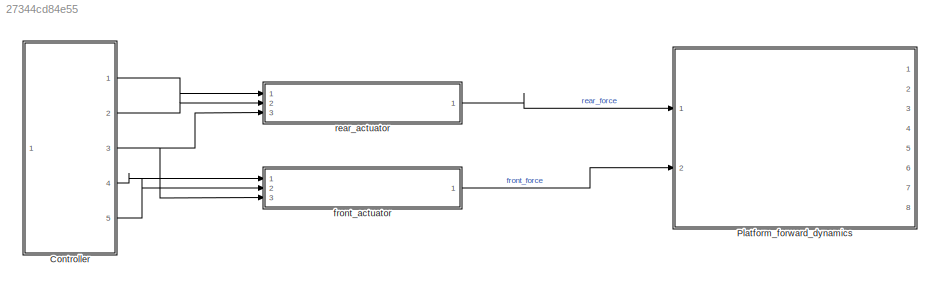
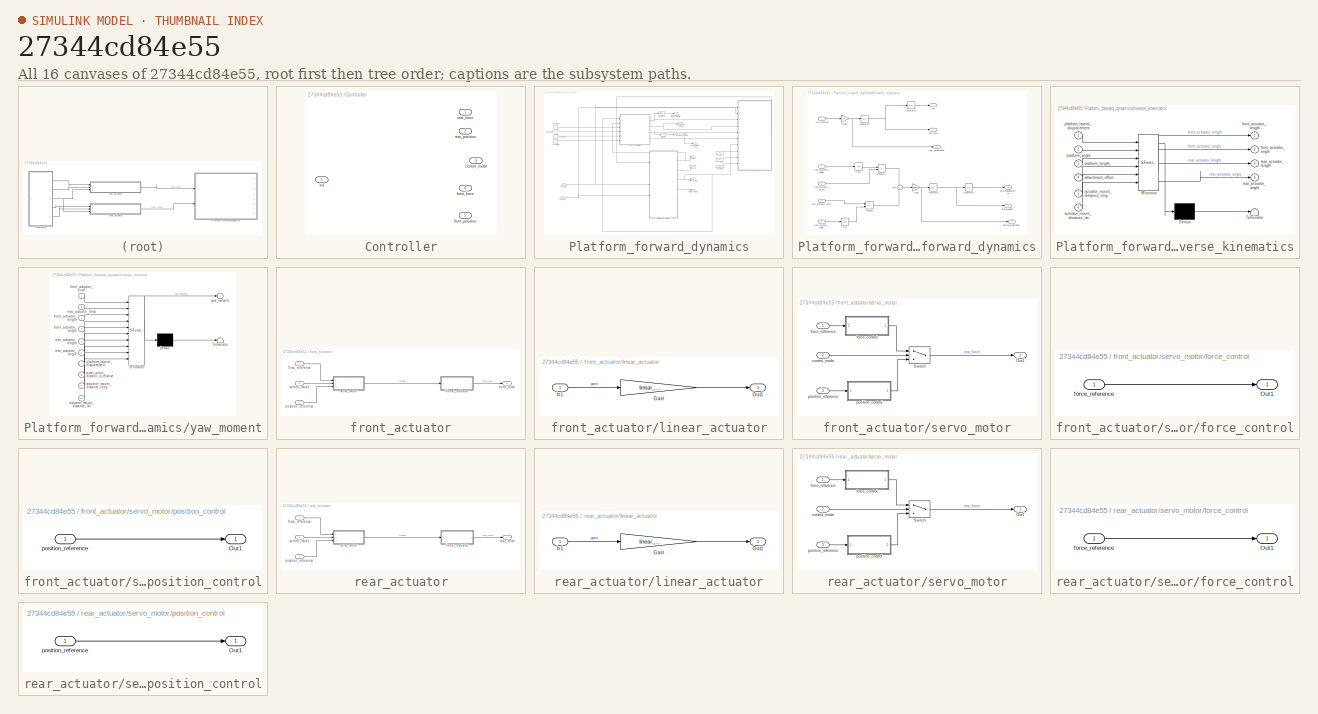
[diagram: thumbnail index - all 16 canvases of the model, root first then tree order]
MODEL slx_27344cd84e55
KIND model
CONFIG AbsTol = auto
CONFIG EnableMultiTasking = off
CONFIG FixedStep = dof2_sim.dt
CONFIG MaxStep = auto
CONFIG MinStep = auto
CONFIG RelTol = 1e-3
CONFIG SampleTimeConstraint = Unconstrained
CONFIG SolverName = FixedStepAuto
CONFIG StartTime = 0.0
CONFIG StopTime = 10.0
BLOCK [SubSystem] Controller
  Ports = [1, 5]
  RequestExecContextInheritance = off
BLOCK [Inport] Controller/In1
BLOCK [Outport] Controller/control_mode
  Port = 3
BLOCK [Outport] Controller/front_force
  Port = 4
BLOCK [Outport] Controller/front_position
  Port = 5
BLOCK [Outport] Controller/rear_force
BLOCK [Outport] Controller/rear_position
  Port = 2
BLOCK [SubSystem] Platform_forward_dynamics
  Ports = [2, 8]
  RequestExecContextInheritance = off
BLOCK [Constant] Platform_forward_dynamics/Constant
  Value = 0.5
BLOCK [Constant] Platform_forward_dynamics/Constant1
  Value = 0.5
BLOCK [Constant] Platform_forward_dynamics/Constant2
  Value = 0.5
BLOCK [Constant] Platform_forward_dynamics/Constant3
BLOCK [Constant] Platform_forward_dynamics/Constant4
BLOCK [Constant] Platform_forward_dynamics/Constant5
BLOCK [Constant] Platform_forward_dynamics/Constant6
BLOCK [Derivative] Platform_forward_dynamics/Derivative
BLOCK [Derivative] Platform_forward_dynamics/Derivative1
BLOCK [SubSystem] Platform_forward_dynamics/forward_dynamics
  Ports = [5, 6]
  RequestExecContextInheritance = off
BLOCK [Trigonometry] Platform_forward_dynamics/forward_dynamics/Cos
  Operator = cos
  Ports = [1, 1]
BLOCK [Trigonometry] Platform_forward_dynamics/forward_dynamics/Cos1
  Operator = cos
  Ports = [1, 1]
BLOCK [Gain] Platform_forward_dynamics/forward_dynamics/Gain
  Gain = 1/platform_mass
BLOCK [Gain] Platform_forward_dynamics/forward_dynamics/Gain1
  Gain = 1/Iz
BLOCK [Integrator] Platform_forward_dynamics/forward_dynamics/Integrator
  Ports = [1, 1]
BLOCK [Integrator] Platform_forward_dynamics/forward_dynamics/Integrator1
  Ports = [1, 1]
BLOCK [Integrator] Platform_forward_dynamics/forward_dynamics/Integrator2
  Ports = [1, 1]
BLOCK [Integrator] Platform_forward_dynamics/forward_dynamics/Integrator3
  Ports = [1, 1]
BLOCK [Product] Platform_forward_dynamics/forward_dynamics/Product
  Ports = [2, 1]
BLOCK [Product] Platform_forward_dynamics/forward_dynamics/Product1
  Ports = [2, 1]
BLOCK [Sum] Platform_forward_dynamics/forward_dynamics/Sum
  Inputs = +-
  Ports = [2, 1]
BLOCK [Inport] Platform_forward_dynamics/forward_dynamics/front_actuator_force
  Port = 3
BLOCK [Inport] Platform_forward_dynamics/forward_dynamics/front_acutator_angle
  Port = 2
BLOCK [Outport] Platform_forward_dynamics/forward_dynamics/lateral_acceleration
  Port = 5
BLOCK [Outport] Platform_forward_dynamics/forward_dynamics/lateral_displacement
  Port = 3
BLOCK [Outport] Platform_forward_dynamics/forward_dynamics/lateral_velocity
  Port = 4
BLOCK [Inport] Platform_forward_dynamics/forward_dynamics/rear_actuator_angle
  Port = 5
BLOCK [Inport] Platform_forward_dynamics/forward_dynamics/rear_actuator_force
  Port = 4
BLOCK [Outport] Platform_forward_dynamics/forward_dynamics/yaw
BLOCK [Outport] Platform_forward_dynamics/forward_dynamics/yaw_acceleration
  Port = 6
BLOCK [Inport] Platform_forward_dynamics/forward_dynamics/yaw_moment
BLOCK [Outport] Platform_forward_dynamics/forward_dynamics/yaw_rate
  Port = 2
BLOCK [Outport] Platform_forward_dynamics/front_actuator_angle
  Port = 3
BLOCK [Outport] Platform_forward_dynamics/front_actuator_linear_velocity
  Port = 7
BLOCK [Inport] Platform_forward_dynamics/front_force
  Port = 2
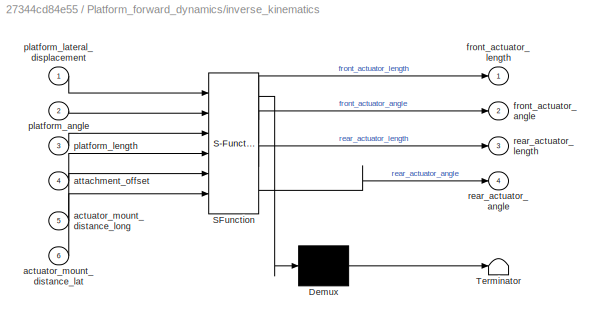
BLOCK [SubSystem] Platform_forward_dynamics/inverse_kinematics
  ErrorFcn = Stateflow.Translate.translate
  PermitHierarchicalResolution = ExplicitOnly
  Ports = [6, 4]
  RequestExecContextInheritance = off
  SFBlockType = MATLAB Function
  TreatAsAtomicUnit = on
BLOCK [Demux] Platform_forward_dynamics/inverse_kinematics/ Demux 
  Outputs = 1
  Ports = [1, 1]
BLOCK [S-Function] Platform_forward_dynamics/inverse_kinematics/ SFunction 
  EnableBusSupport = off
  FunctionName = sf_sfun
  PortCounts = [6 5]
  Ports = [6, 5]
  SFcnIsStateOwnerBlock = off
  SFunctionDeploymentMode = off
  Tag = Stateflow S-Function 1
BLOCK [Terminator] Platform_forward_dynamics/inverse_kinematics/ Terminator 
BLOCK [Inport] Platform_forward_dynamics/inverse_kinematics/actuator_mount_distance_lat
  Port = 6
BLOCK [Inport] Platform_forward_dynamics/inverse_kinematics/actuator_mount_distance_long
  Port = 5
BLOCK [Inport] Platform_forward_dynamics/inverse_kinematics/attachment_offset
  Port = 4
BLOCK [Outport] Platform_forward_dynamics/inverse_kinematics/front_actuator_angle
  Port = 2
BLOCK [Outport] Platform_forward_dynamics/inverse_kinematics/front_actuator_length
BLOCK [Inport] Platform_forward_dynamics/inverse_kinematics/platform_angle
  Port = 2
BLOCK [Inport] Platform_forward_dynamics/inverse_kinematics/platform_lateral_displacement
BLOCK [Inport] Platform_forward_dynamics/inverse_kinematics/platform_length
  Port = 3
BLOCK [Outport] Platform_forward_dynamics/inverse_kinematics/rear_actuator_angle
  Port = 4
BLOCK [Outport] Platform_forward_dynamics/inverse_kinematics/rear_actuator_length
  Port = 3
BLOCK [Outport] Platform_forward_dynamics/lateral_position
  Port = 2
BLOCK [Outport] Platform_forward_dynamics/lateral_velocity
  Port = 6
BLOCK [Outport] Platform_forward_dynamics/rear_actuator_angle
  Port = 4
BLOCK [Outport] Platform_forward_dynamics/rear_actuator_linear_velocity
  Port = 8
BLOCK [Inport] Platform_forward_dynamics/rear_force
BLOCK [Outport] Platform_forward_dynamics/theta
BLOCK [Outport] Platform_forward_dynamics/theta_dot
  Port = 5
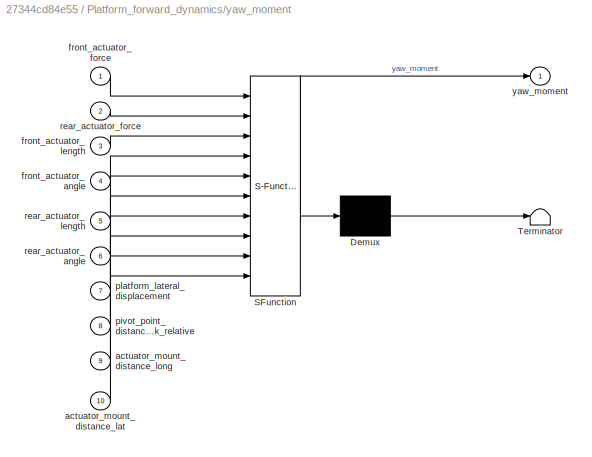
BLOCK [SubSystem] Platform_forward_dynamics/yaw_moment
  ErrorFcn = Stateflow.Translate.translate
  PermitHierarchicalResolution = ExplicitOnly
  Ports = [10, 1]
  RequestExecContextInheritance = off
  SFBlockType = MATLAB Function
  TreatAsAtomicUnit = on
BLOCK [Demux] Platform_forward_dynamics/yaw_moment/ Demux 
  Outputs = 1
  Ports = [1, 1]
BLOCK [S-Function] Platform_forward_dynamics/yaw_moment/ SFunction 
  EnableBusSupport = off
  FunctionName = sf_sfun
  PortCounts = [10 2]
  Ports = [10, 2]
  SFcnIsStateOwnerBlock = off
  SFunctionDeploymentMode = off
  Tag = Stateflow S-Function 2
BLOCK [Terminator] Platform_forward_dynamics/yaw_moment/ Terminator 
BLOCK [Inport] Platform_forward_dynamics/yaw_moment/actuator_mount_distance_lat
  Port = 10
BLOCK [Inport] Platform_forward_dynamics/yaw_moment/actuator_mount_distance_long
  Port = 9
BLOCK [Inport] Platform_forward_dynamics/yaw_moment/front_actuator_angle
  Port = 4
BLOCK [Inport] Platform_forward_dynamics/yaw_moment/front_actuator_force
BLOCK [Inport] Platform_forward_dynamics/yaw_moment/front_actuator_length
  Port = 3
BLOCK [Inport] Platform_forward_dynamics/yaw_moment/pivot_point_distance_from_back_relative
  Port = 8
BLOCK [Inport] Platform_forward_dynamics/yaw_moment/platform_lateral_displacement
  Port = 7
BLOCK [Inport] Platform_forward_dynamics/yaw_moment/rear_actuator_angle
  Port = 6
BLOCK [Inport] Platform_forward_dynamics/yaw_moment/rear_actuator_force
  Port = 2
BLOCK [Inport] Platform_forward_dynamics/yaw_moment/rear_actuator_length
  Port = 5
BLOCK [Outport] Platform_forward_dynamics/yaw_moment/yaw_moment
BLOCK [SubSystem] front_actuator
  Ports = [3, 1]
  RequestExecContextInheritance = off
BLOCK [Inport] front_actuator/control_mode
  Port = 3
BLOCK [Inport] front_actuator/force_reference
BLOCK [Outport] front_actuator/front_force
BLOCK [SubSystem] front_actuator/linear_actuator
  Ports = [1, 1]
  RequestExecContextInheritance = off
BLOCK [Gain] front_actuator/linear_actuator/Gain
  Gain = linear_actuator_force_torque_force_ratio
BLOCK [Inport] front_actuator/linear_actuator/In1
BLOCK [Outport] front_actuator/linear_actuator/Out1
BLOCK [Inport] front_actuator/position_reference
  Port = 2
BLOCK [SubSystem] front_actuator/servo_motor
  Ports = [3, 1]
  RequestExecContextInheritance = off
BLOCK [Outport] front_actuator/servo_motor/Out1
BLOCK [Switch] front_actuator/servo_motor/Switch
  Criteria = u2 > Threshold
  InputSameDT = off
  SaturateOnIntegerOverflow = off
BLOCK [Inport] front_actuator/servo_motor/control_mode
  Port = 2
BLOCK [SubSystem] front_actuator/servo_motor/force_control
  Ports = [1, 1]
  RequestExecContextInheritance = off
BLOCK [Outport] front_actuator/servo_motor/force_control/Out1
BLOCK [Inport] front_actuator/servo_motor/force_control/force_reference
BLOCK [Inport] front_actuator/servo_motor/force_reference
BLOCK [SubSystem] front_actuator/servo_motor/position_control
  Ports = [1, 1]
  RequestExecContextInheritance = off
BLOCK [Outport] front_actuator/servo_motor/position_control/Out1
BLOCK [Inport] front_actuator/servo_motor/position_control/position_reference
BLOCK [Inport] front_actuator/servo_motor/position_reference
  Port = 3
BLOCK [SubSystem] rear_actuator
  Ports = [3, 1]
  RequestExecContextInheritance = off
BLOCK [Inport] rear_actuator/control_mode
  Port = 3
BLOCK [Inport] rear_actuator/force_reference
BLOCK [SubSystem] rear_actuator/linear_actuator
  Ports = [1, 1]
  RequestExecContextInheritance = off
BLOCK [Gain] rear_actuator/linear_actuator/Gain
  Gain = linear_actuator_force_torque_force_ratio
BLOCK [Inport] rear_actuator/linear_actuator/In1
BLOCK [Outport] rear_actuator/linear_actuator/Out1
BLOCK [Inport] rear_actuator/position_reference
  Port = 2
BLOCK [Outport] rear_actuator/rear_force
BLOCK [SubSystem] rear_actuator/servo_motor
  Ports = [3, 1]
  RequestExecContextInheritance = off
BLOCK [Outport] rear_actuator/servo_motor/Out1
BLOCK [Switch] rear_actuator/servo_motor/Switch
  Criteria = u2 > Threshold
  InputSameDT = off
  SaturateOnIntegerOverflow = off
BLOCK [Inport] rear_actuator/servo_motor/control_mode
  Port = 2
BLOCK [SubSystem] rear_actuator/servo_motor/force_control
  Ports = [1, 1]
  RequestExecContextInheritance = off
BLOCK [Outport] rear_actuator/servo_motor/force_control/Out1
BLOCK [Inport] rear_actuator/servo_motor/force_control/force_reference
BLOCK [Inport] rear_actuator/servo_motor/force_reference
BLOCK [SubSystem] rear_actuator/servo_motor/position_control
  Ports = [1, 1]
  RequestExecContextInheritance = off
BLOCK [Outport] rear_actuator/servo_motor/position_control/Out1
BLOCK [Inport] rear_actuator/servo_motor/position_control/position_reference
BLOCK [Inport] rear_actuator/servo_motor/position_reference
  Port = 3
LINE Controller:1 -> rear_actuator:1
LINE Controller:2 -> rear_actuator:2
NET Controller:3 -> front_actuator:3, rear_actuator:3
LINE Controller:4 -> front_actuator:1
LINE Controller:5 -> front_actuator:2
LINE Platform_forward_dynamics/Constant1:1 -> Platform_forward_dynamics/yaw_moment:9
LINE Platform_forward_dynamics/Constant2:1 -> Platform_forward_dynamics/yaw_moment:10
LINE Platform_forward_dynamics/Constant3:1 -> Platform_forward_dynamics/inverse_kinematics:3
LINE Platform_forward_dynamics/Constant4:1 -> Platform_forward_dynamics/inverse_kinematics:4
LINE Platform_forward_dynamics/Constant5:1 -> Platform_forward_dynamics/inverse_kinematics:5
LINE Platform_forward_dynamics/Constant6:1 -> Platform_forward_dynamics/inverse_kinematics:6
LINE Platform_forward_dynamics/Constant:1 -> Platform_forward_dynamics/yaw_moment:8
LINE Platform_forward_dynamics/Derivative1:1 -> Platform_forward_dynamics/front_actuator_linear_velocity:1
LINE Platform_forward_dynamics/Derivative:1 -> Platform_forward_dynamics/rear_actuator_linear_velocity:1
LINE Platform_forward_dynamics/forward_dynamics/Cos1:1 -> Platform_forward_dynamics/forward_dynamics/Product1:1
LINE Platform_forward_dynamics/forward_dynamics/Cos:1 -> Platform_forward_dynamics/forward_dynamics/Product:2
NET Platform_forward_dynamics/forward_dynamics/Gain1:1 -> Platform_forward_dynamics/forward_dynamics/Integrator2:1, Platform_forward_dynamics/forward_dynamics/yaw_acceleration:1
NET Platform_forward_dynamics/forward_dynamics/Gain:1 -> Platform_forward_dynamics/forward_dynamics/Integrator:1, Platform_forward_dynamics/forward_dynamics/lateral_acceleration:1
LINE Platform_forward_dynamics/forward_dynamics/Integrator1:1 -> Platform_forward_dynamics/forward_dynamics/lateral_displacement:1
NET Platform_forward_dynamics/forward_dynamics/Integrator2:1 -> Platform_forward_dynamics/forward_dynamics/Integrator3:1, Platform_forward_dynamics/forward_dynamics/yaw_rate:1
LINE Platform_forward_dynamics/forward_dynamics/Integrator3:1 -> Platform_forward_dynamics/forward_dynamics/yaw:1
NET Platform_forward_dynamics/forward_dynamics/Integrator:1 -> Platform_forward_dynamics/forward_dynamics/Integrator1:1, Platform_forward_dynamics/forward_dynamics/lateral_velocity:1
LINE Platform_forward_dynamics/forward_dynamics/Product1:1 -> Platform_forward_dynamics/forward_dynamics/Sum:1
LINE Platform_forward_dynamics/forward_dynamics/Product:1 -> Platform_forward_dynamics/forward_dynamics/Sum:2
LINE Platform_forward_dynamics/forward_dynamics/Sum:1 -> Platform_forward_dynamics/forward_dynamics/Gain:1
LINE Platform_forward_dynamics/forward_dynamics/front_actuator_force:1 -> Platform_forward_dynamics/forward_dynamics/Product1:2
LINE Platform_forward_dynamics/forward_dynamics/front_acutator_angle:1 -> Platform_forward_dynamics/forward_dynamics/Cos1:1
LINE Platform_forward_dynamics/forward_dynamics/rear_actuator_angle:1 -> Platform_forward_dynamics/forward_dynamics/Cos:1
LINE Platform_forward_dynamics/forward_dynamics/rear_actuator_force:1 -> Platform_forward_dynamics/forward_dynamics/Product:1
LINE Platform_forward_dynamics/forward_dynamics/yaw_moment:1 -> Platform_forward_dynamics/forward_dynamics/Gain1:1
NET Platform_forward_dynamics/forward_dynamics:1 -> Platform_forward_dynamics/inverse_kinematics:2, Platform_forward_dynamics/theta:1
LINE Platform_forward_dynamics/forward_dynamics:2 -> Platform_forward_dynamics/theta_dot:1
NET Platform_forward_dynamics/forward_dynamics:3 -> Platform_forward_dynamics/inverse_kinematics:1, Platform_forward_dynamics/lateral_position:1, Platform_forward_dynamics/yaw_moment:7
LINE Platform_forward_dynamics/forward_dynamics:4 -> Platform_forward_dynamics/lateral_velocity:1
NET Platform_forward_dynamics/front_force:1 -> Platform_forward_dynamics/forward_dynamics:3, Platform_forward_dynamics/yaw_moment:1
NET Platform_forward_dynamics/inverse_kinematics:1 -> Platform_forward_dynamics/Derivative1:1, Platform_forward_dynamics/yaw_moment:3
NET Platform_forward_dynamics/inverse_kinematics:2 -> Platform_forward_dynamics/front_actuator_angle:1, Platform_forward_dynamics/yaw_moment:4
NET Platform_forward_dynamics/inverse_kinematics:3 -> Platform_forward_dynamics/Derivative:1, Platform_forward_dynamics/yaw_moment:5
NET Platform_forward_dynamics/inverse_kinematics:4 -> Platform_forward_dynamics/rear_actuator_angle:1, Platform_forward_dynamics/yaw_moment:6
NET Platform_forward_dynamics/rear_force:1 -> Platform_forward_dynamics/forward_dynamics:4, Platform_forward_dynamics/yaw_moment:2
LINE Platform_forward_dynamics/yaw_moment:1 -> Platform_forward_dynamics/forward_dynamics:1
LINE front_actuator/control_mode:1 -> front_actuator/servo_motor:2
LINE front_actuator/force_reference:1 -> front_actuator/servo_motor:1
LINE front_actuator/linear_actuator/Gain:1 -> front_actuator/linear_actuator/Out1:1
LINE front_actuator/linear_actuator/In1:1 -> front_actuator/linear_actuator/Gain:1
LINE front_actuator/linear_actuator:1 -> front_actuator/front_force:1
LINE front_actuator/position_reference:1 -> front_actuator/servo_motor:3
LINE front_actuator/servo_motor/Switch:1 -> front_actuator/servo_motor/Out1:1
LINE front_actuator/servo_motor/control_mode:1 -> front_actuator/servo_motor/Switch:2
LINE front_actuator/servo_motor/force_control/force_reference:1 -> front_actuator/servo_motor/force_control/Out1:1
LINE front_actuator/servo_motor/force_control:1 -> front_actuator/servo_motor/Switch:1
LINE front_actuator/servo_motor/force_reference:1 -> front_actuator/servo_motor/force_control:1
LINE front_actuator/servo_motor/position_control/position_reference:1 -> front_actuator/servo_motor/position_control/Out1:1
LINE front_actuator/servo_motor/position_control:1 -> front_actuator/servo_motor/Switch:3
LINE front_actuator/servo_motor/position_reference:1 -> front_actuator/servo_motor/position_control:1
LINE front_actuator/servo_motor:1 -> front_actuator/linear_actuator:1
LINE front_actuator:1 -> Platform_forward_dynamics:2
LINE rear_actuator/control_mode:1 -> rear_actuator/servo_motor:2
LINE rear_actuator/force_reference:1 -> rear_actuator/servo_motor:1
LINE rear_actuator/linear_actuator/Gain:1 -> rear_actuator/linear_actuator/Out1:1
LINE rear_actuator/linear_actuator/In1:1 -> rear_actuator/linear_actuator/Gain:1
LINE rear_actuator/linear_actuator:1 -> rear_actuator/rear_force:1
LINE rear_actuator/position_reference:1 -> rear_actuator/servo_motor:3
LINE rear_actuator/servo_motor/Switch:1 -> rear_actuator/servo_motor/Out1:1
LINE rear_actuator/servo_motor/control_mode:1 -> rear_actuator/servo_motor/Switch:2
LINE rear_actuator/servo_motor/force_control/force_reference:1 -> rear_actuator/servo_motor/force_control/Out1:1
LINE rear_actuator/servo_motor/force_control:1 -> rear_actuator/servo_motor/Switch:1
LINE rear_actuator/servo_motor/force_reference:1 -> rear_actuator/servo_motor/force_control:1
LINE rear_actuator/servo_motor/position_control/position_reference:1 -> rear_actuator/servo_motor/position_control/Out1:1
LINE rear_actuator/servo_motor/position_control:1 -> rear_actuator/servo_motor/Switch:3
LINE rear_actuator/servo_motor/position_reference:1 -> rear_actuator/servo_motor/position_control:1
LINE rear_actuator/servo_motor:1 -> rear_actuator/linear_actuator:1
LINE rear_actuator:1 -> Platform_forward_dynamics:1
note: NET lines group one-source signal fan-out (src -> all destinations, sorted); 1:1 wires keep LINE
CHART Platform_forward_dynamics/inverse_kinematics states=1 transitions=1
  STATE_LABEL 'eML_blk_kernel()'
  STATE_LABEL 'SCRIPT:\nfunction [front_actuator_length,front_actuator_angle,rear_actuator_length, rear_actuator_angle] = fcn(...\n                          platform_lateral_displacement,...\n                          platform_angle,...\n                          platform_length,...\n                          attachment_offset,...\n                          actuator_mount_distance_long,...\n                          ac...<+1086ch>'
CHART Platform_forward_dynamics/yaw_moment states=1 transitions=1
  STATE_LABEL 'eML_blk_kernel()'
  STATE_LABEL 'SCRIPT:\nfunction yaw_moment = fcn(front_actuator_force,...\n                          rear_actuator_force, ...\n                          front_actuator_length, ...\n                          front_actuator_angle,...\n                          rear_actuator_length, ...\n                          rear_actuator_angle,...\n                          platform_lateral_displacement,...\n                        ...<+1414ch>'
CHART  states=0 transitions=0
CHART  states=0 transitions=0
